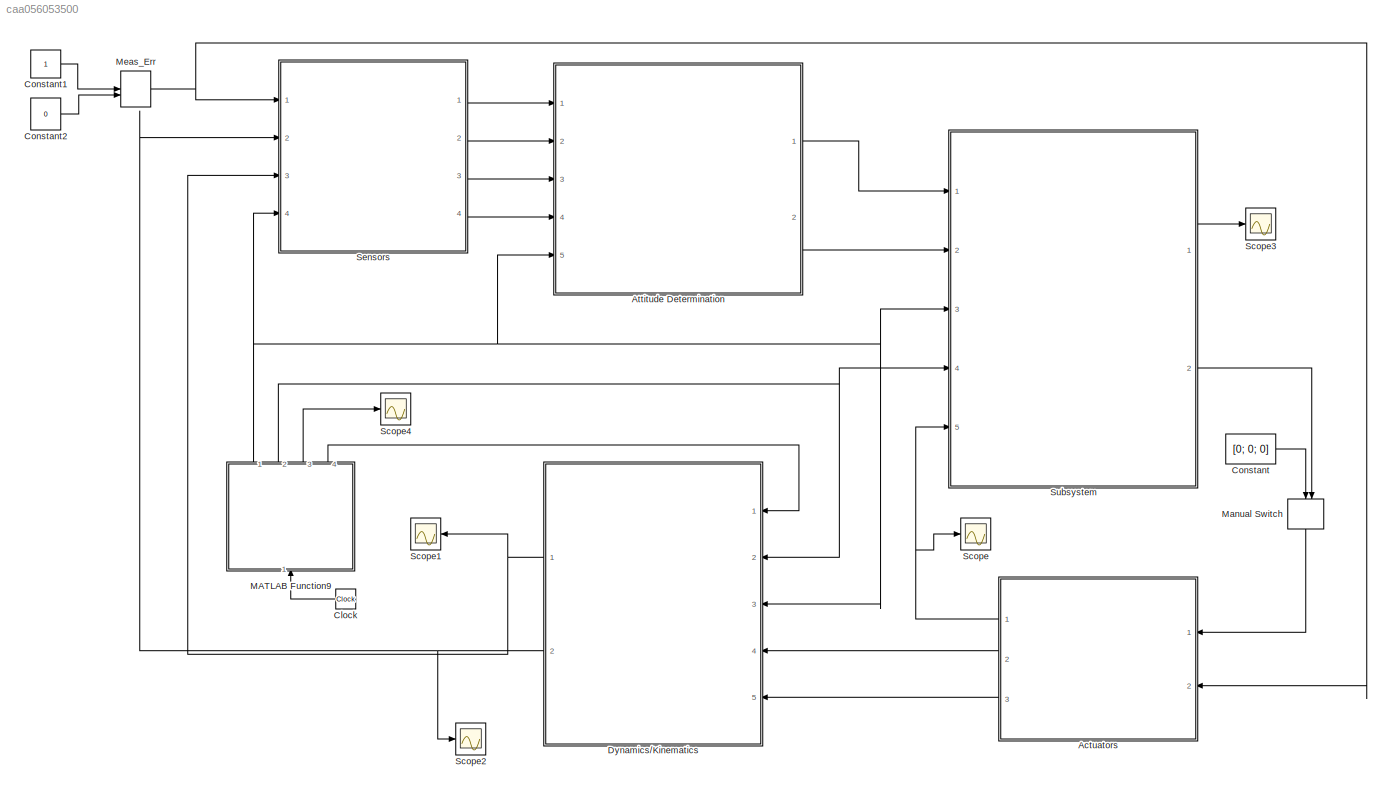
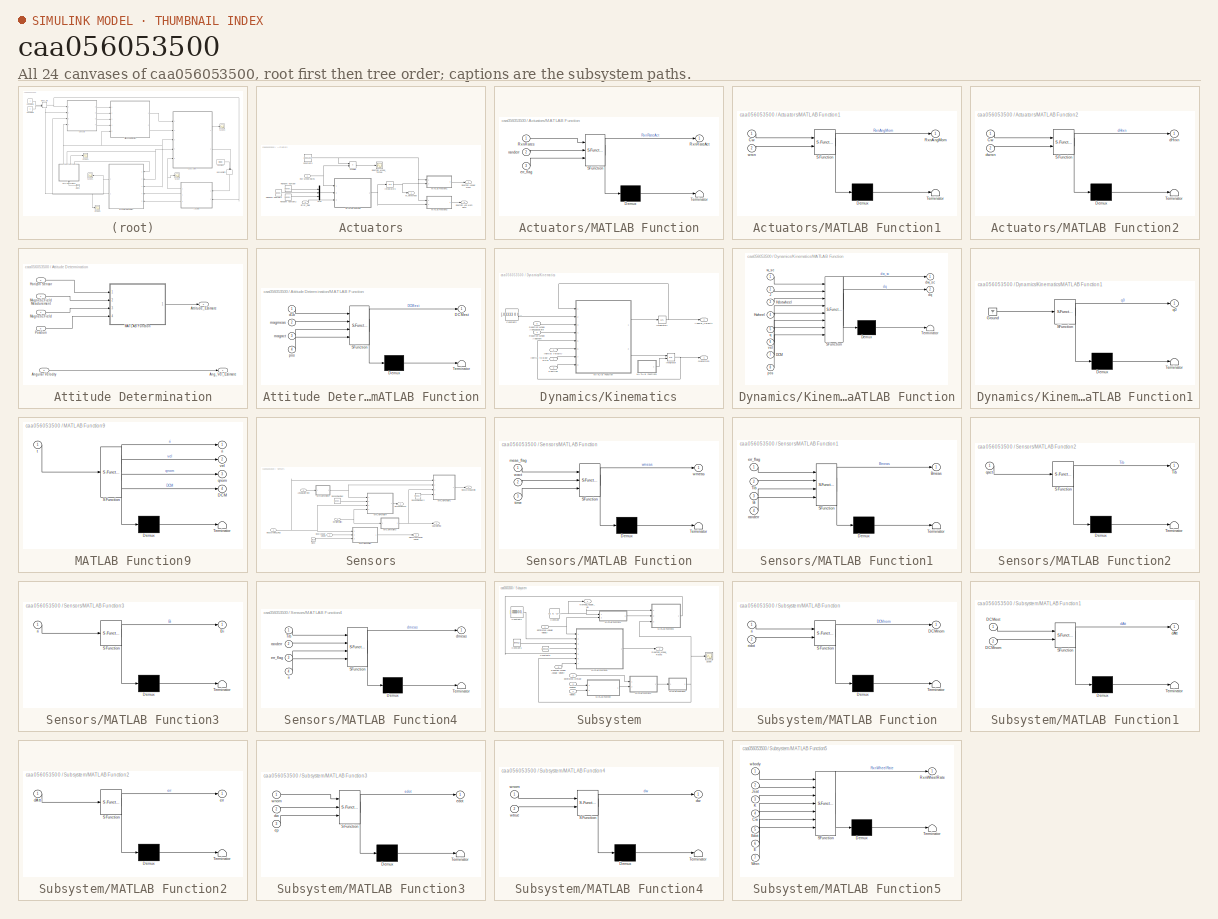
[diagram: thumbnail index - all 24 canvases of the model, root first then tree order]
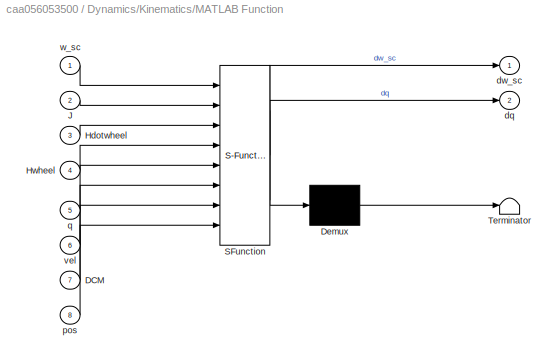
MODEL slx_caa056053500
KIND model
CONFIG AbsTol = auto
CONFIG EnableMultiTasking = off
CONFIG FixedStep = auto
CONFIG MaxStep = auto
CONFIG MinStep = auto
CONFIG RelTol = 1e-14
CONFIG SampleTimeConstraint = Unconstrained
CONFIG Solver = VariableStepAuto
CONFIG SolverName = VariableStepAuto
CONFIG StartTime = 0.0
CONFIG StopTime = 5000
BLOCK [SubSystem] Actuators
  Ports = [2, 3]
  RequestExecContextInheritance = off
BLOCK [Constant] Actuators/Constant3
  Value = .00001057
BLOCK [Inport] Actuators/Error_Flag 
  IconDisplay = Port number
  Port = 2
BLOCK [Integrator] Actuators/Integrator3
  InitialCondition = [0; 0; 0]
  Ports = [1, 1]
BLOCK [SubSystem] Actuators/MATLAB Function
  ErrorFcn = Stateflow.Translate.translate
  PermitHierarchicalResolution = ExplicitOnly
  Ports = [3, 1]
  RequestExecContextInheritance = off
  SFBlockType = MATLAB Function
  TreatAsAtomicUnit = on
BLOCK [Demux] Actuators/MATLAB Function/ Demux 
  Outputs = 1
  Ports = [1, 1]
BLOCK [S-Function] Actuators/MATLAB Function/ SFunction 
  EnableBusSupport = on
  FunctionName = sf_sfun
  PortCounts = [3 2]
  Ports = [3, 2]
  SFcnIsStateOwnerBlock = off
  SFunctionDeploymentMode = off
  Tag = Stateflow S-Function AttitudeFinalProject 24
BLOCK [Terminator] Actuators/MATLAB Function/ Terminator 
BLOCK [Outport] Actuators/MATLAB Function/RxnRateAct
  IconDisplay = Port number
BLOCK [Inport] Actuators/MATLAB Function/RxnRates
  IconDisplay = Port number
BLOCK [Inport] Actuators/MATLAB Function/err_flag
  IconDisplay = Port number
  Port = 3
BLOCK [Inport] Actuators/MATLAB Function/randerr
  IconDisplay = Port number
  Port = 2
BLOCK [SubSystem] Actuators/MATLAB Function1
  ErrorFcn = Stateflow.Translate.translate
  PermitHierarchicalResolution = ExplicitOnly
  Ports = [2, 1]
  RequestExecContextInheritance = off
  SFBlockType = MATLAB Function
  TreatAsAtomicUnit = on
BLOCK [Demux] Actuators/MATLAB Function1/ Demux 
  Outputs = 1
  Ports = [1, 1]
BLOCK [S-Function] Actuators/MATLAB Function1/ SFunction 
  EnableBusSupport = on
  FunctionName = sf_sfun
  PortCounts = [2 2]
  Ports = [2, 2]
  SFcnIsStateOwnerBlock = off
  SFunctionDeploymentMode = off
  Tag = Stateflow S-Function AttitudeFinalProject 25
BLOCK [Terminator] Actuators/MATLAB Function1/ Terminator 
BLOCK [Inport] Actuators/MATLAB Function1/Cw
  IconDisplay = Port number
BLOCK [Outport] Actuators/MATLAB Function1/RxnAngMom
  IconDisplay = Port number
BLOCK [Inport] Actuators/MATLAB Function1/wrxn
  IconDisplay = Port number
  Port = 2
BLOCK [SubSystem] Actuators/MATLAB Function2
  ErrorFcn = Stateflow.Translate.translate
  PermitHierarchicalResolution = ExplicitOnly
  Ports = [2, 1]
  RequestExecContextInheritance = off
  SFBlockType = MATLAB Function
  TreatAsAtomicUnit = on
BLOCK [Demux] Actuators/MATLAB Function2/ Demux 
  Outputs = 1
  Ports = [1, 1]
BLOCK [S-Function] Actuators/MATLAB Function2/ SFunction 
  EnableBusSupport = on
  FunctionName = sf_sfun
  PortCounts = [2 2]
  Ports = [2, 2]
  SFcnIsStateOwnerBlock = off
  SFunctionDeploymentMode = off
  Tag = Stateflow S-Function AttitudeFinalProject 26
BLOCK [Terminator] Actuators/MATLAB Function2/ Terminator 
BLOCK [Inport] Actuators/MATLAB Function2/Cw
  IconDisplay = Port number
BLOCK [Outport] Actuators/MATLAB Function2/dHrxn
  IconDisplay = Port number
BLOCK [Inport] Actuators/MATLAB Function2/dwrxn
  IconDisplay = Port number
  Port = 2
BLOCK [Product] Actuators/Multiply
  InputSameDT = off
  OutDataTypeStr = Inherit: Inherit via internal rule
  Ports = [2, 1]
  RndMeth = Floor
  SaturateOnIntegerOverflow = off
BLOCK [Mux] Actuators/Mux
  DisplayOption = bar
  Inputs = 3
  Ports = [3, 1]
BLOCK [RandomNumber] Actuators/Random Number
  SampleTime = 0.1
BLOCK [RandomNumber] Actuators/Random Number1
  SampleTime = 0.1
BLOCK [RandomNumber] Actuators/Random Number2
  SampleTime = 0.1
BLOCK [Outport] Actuators/Reaction Ang Mom Rate
  IconDisplay = Port number
  Port = 3
BLOCK [Outport] Actuators/Reaction Angular Mom
  IconDisplay = Port number
  Port = 2
BLOCK [Scope] Actuators/Reaction_Wheel_Torque 
  Floating = off
  NumInputPorts = 1
  Ports = [1]
  ScopeSpecificationString = Simulink.scopes.TimeScopeBlockCfg('CurrentConfiguration', extmgr.ConfigurationSet(extmgr.Configuration('Core','General UI',true),extmgr.Configuration('Core','Source UI',true),extmgr.Configuration('Sources','WiredSimulink',true,'DataLoggingVariableName','ScopeData1'),extmgr.Configuration('Visuals','Time Domain',true,'SerializedDisplays',{struct('MinYLimReal','-0.000006','MaxYLimReal','0.000024','YL...<+1403ch>
BLOCK [Inport] Actuators/Rxn Wheel Rates
  IconDisplay = Port number
BLOCK [Outport] Actuators/W_RxnWheel
  IconDisplay = Port number
BLOCK [SubSystem] Attitude Determination
  Ports = [5, 2]
  RequestExecContextInheritance = off
BLOCK [Outport] Attitude Determination/Ang_Vel_Estimate
  IconDisplay = Port number
BLOCK [Inport] Attitude Determination/Angular Velocity
  IconDisplay = Port number
  Port = 3
BLOCK [Outport] Attitude Determination/Attitude_Estimate
  IconDisplay = Port number
  Port = 2
BLOCK [Inport] Attitude Determination/Horizon Sensor
  IconDisplay = Port number
  Port = 2
BLOCK [SubSystem] Attitude Determination/MATLAB Function
  ErrorFcn = Stateflow.Translate.translate
  PermitHierarchicalResolution = ExplicitOnly
  Ports = [4, 1]
  RequestExecContextInheritance = off
  SFBlockType = MATLAB Function
  TreatAsAtomicUnit = on
BLOCK [Demux] Attitude Determination/MATLAB Function/ Demux 
  Outputs = 1
  Ports = [1, 1]
BLOCK [S-Function] Attitude Determination/MATLAB Function/ SFunction 
  EnableBusSupport = on
  FunctionName = sf_sfun
  PortCounts = [4 2]
  Ports = [4, 2]
  SFcnIsStateOwnerBlock = off
  SFunctionDeploymentMode = off
  Tag = Stateflow S-Function AttitudeFinalProject 11
BLOCK [Terminator] Attitude Determination/MATLAB Function/ Terminator 
BLOCK [Outport] Attitude Determination/MATLAB Function/DCMest
  IconDisplay = Port number
BLOCK [Inport] Attitude Determination/MATLAB Function/d1b
  IconDisplay = Port number
BLOCK [Inport] Attitude Determination/MATLAB Function/magact
  IconDisplay = Port number
  Port = 3
BLOCK [Inport] Attitude Determination/MATLAB Function/magmeas
  IconDisplay = Port number
  Port = 2
BLOCK [Inport] Attitude Determination/MATLAB Function/pos
  IconDisplay = Port number
  Port = 4
BLOCK [Inport] Attitude Determination/Magnetic Field
  IconDisplay = Port number
  Port = 4
BLOCK [Inport] Attitude Determination/Magnetic Field Meadurement
  IconDisplay = Port number
BLOCK [Inport] Attitude Determination/Position
  IconDisplay = Port number
  Port = 5
BLOCK [Clock] Clock
BLOCK [Constant] Constant
  Value = [0; 0; 0]
BLOCK [Constant] Constant1
BLOCK [Constant] Constant2
  Value = 0
BLOCK [SubSystem] Dynamics//Kinematics
  Ports = [5, 2]
  RequestExecContextInheritance = off
BLOCK [Outport] Dynamics//Kinematics/Angular_Velocity
  IconDisplay = Port number
  Port = 2
BLOCK [Constant] Dynamics//Kinematics/Constant2
  Value = [.03333 0 0; 0 .0067 0; 0 0 .03333]
BLOCK [Inport] Dynamics//Kinematics/Inertial Velocity
  IconDisplay = Port number
  Port = 2
BLOCK [Inport] Dynamics//Kinematics/Inertial to Body DCM 
  IconDisplay = Port number
BLOCK [Integrator] Dynamics//Kinematics/Integrator
  InitialConditionSource = external
  Ports = [2, 1]
BLOCK [Integrator] Dynamics//Kinematics/Integrator1
  InitialCondition = [.005; 0; - sqrt(3.986e14/6600000^3)]
  Ports = [1, 1]
BLOCK [SubSystem] Dynamics//Kinematics/MATLAB Function
  ErrorFcn = Stateflow.Translate.translate
  PermitHierarchicalResolution = ExplicitOnly
  Ports = [8, 2]
  RequestExecContextInheritance = off
  SFBlockType = MATLAB Function
  TreatAsAtomicUnit = on
BLOCK [Demux] Dynamics//Kinematics/MATLAB Function/ Demux 
  Outputs = 1
  Ports = [1, 1]
BLOCK [S-Function] Dynamics//Kinematics/MATLAB Function/ SFunction 
  EnableBusSupport = on
  FunctionName = sf_sfun
  PortCounts = [8 3]
  Ports = [8, 3]
  SFcnIsStateOwnerBlock = off
  SFunctionDeploymentMode = off
  Tag = Stateflow S-Function AttitudeFinalProject 27
BLOCK [Terminator] Dynamics//Kinematics/MATLAB Function/ Terminator 
BLOCK [Inport] Dynamics//Kinematics/MATLAB Function/DCM
  IconDisplay = Port number
  Port = 7
BLOCK [Inport] Dynamics//Kinematics/MATLAB Function/Hdotwheel
  IconDisplay = Port number
  Port = 3
BLOCK [Inport] Dynamics//Kinematics/MATLAB Function/Hwheel
  IconDisplay = Port number
  Port = 4
BLOCK [Inport] Dynamics//Kinematics/MATLAB Function/J
  IconDisplay = Port number
  Port = 2
BLOCK [Outport] Dynamics//Kinematics/MATLAB Function/dq
  IconDisplay = Port number
  Port = 2
BLOCK [Outport] Dynamics//Kinematics/MATLAB Function/dw_sc
  IconDisplay = Port number
BLOCK [Inport] Dynamics//Kinematics/MATLAB Function/pos
  IconDisplay = Port number
  Port = 8
BLOCK [Inport] Dynamics//Kinematics/MATLAB Function/q
  IconDisplay = Port number
  Port = 5
BLOCK [Inport] Dynamics//Kinematics/MATLAB Function/vel
  IconDisplay = Port number
  Port = 6
BLOCK [Inport] Dynamics//Kinematics/MATLAB Function/w_sc
  IconDisplay = Port number
BLOCK [SubSystem] Dynamics//Kinematics/MATLAB Function1
  ErrorFcn = Stateflow.Translate.translate
  PermitHierarchicalResolution = ExplicitOnly
  Ports = [0, 1]
  RequestExecContextInheritance = off
  SFBlockType = MATLAB Function
  TreatAsAtomicUnit = on
BLOCK [Demux] Dynamics//Kinematics/MATLAB Function1/ Demux 
  Outputs = 1
  Ports = [1, 1]
BLOCK [Ground] Dynamics//Kinematics/MATLAB Function1/ Ground 
BLOCK [S-Function] Dynamics//Kinematics/MATLAB Function1/ SFunction 
  EnableBusSupport = on
  FunctionName = sf_sfun
  PortCounts = [1 2]
  Ports = [1, 2]
  SFcnIsStateOwnerBlock = off
  SFunctionDeploymentMode = off
  Tag = Stateflow S-Function AttitudeFinalProject 2
BLOCK [Terminator] Dynamics//Kinematics/MATLAB Function1/ Terminator 
BLOCK [Outport] Dynamics//Kinematics/MATLAB Function1/q0
  IconDisplay = Port number
BLOCK [Inport] Dynamics//Kinematics/Position 
  IconDisplay = Port number
  Port = 3
BLOCK [Outport] Dynamics//Kinematics/Quaternion
  IconDisplay = Port number
BLOCK [Inport] Dynamics//Kinematics/Reaction Wheel AngMom
  IconDisplay = Port number
  Port = 4
BLOCK [Inport] Dynamics//Kinematics/Reaction Wheel AngMomRate 
  IconDisplay = Port number
  Port = 5
BLOCK [SubSystem] MATLAB Function9
  ErrorFcn = Stateflow.Translate.translate
  PermitHierarchicalResolution = ExplicitOnly
  Ports = [1, 4]
  RequestExecContextInheritance = off
  SFBlockType = MATLAB Function
  TreatAsAtomicUnit = on
BLOCK [Demux] MATLAB Function9/ Demux 
  Outputs = 1
  Ports = [1, 1]
BLOCK [S-Function] MATLAB Function9/ SFunction 
  EnableBusSupport = on
  FunctionName = sf_sfun
  PortCounts = [1 5]
  Ports = [1, 5]
  SFcnIsStateOwnerBlock = off
  SFunctionDeploymentMode = off
  Tag = Stateflow S-Function AttitudeFinalProject 10
BLOCK [Terminator] MATLAB Function9/ Terminator 
BLOCK [Outport] MATLAB Function9/DCM
  IconDisplay = Port number
  Port = 4
BLOCK [Outport] MATLAB Function9/qnom
  IconDisplay = Port number
  Port = 3
BLOCK [Outport] MATLAB Function9/ri
  IconDisplay = Port number
BLOCK [Inport] MATLAB Function9/t
  IconDisplay = Port number
BLOCK [Outport] MATLAB Function9/vel
  IconDisplay = Port number
  Port = 2
BLOCK [ManualSwitch] Manual Switch
  CurrentSetting = 0
BLOCK [ManualSwitch] Meas_Err
BLOCK [Scope] Scope
  Floating = off
  NumInputPorts = 1
  Ports = [1]
  ScopeSpecificationString = Simulink.scopes.TimeScopeBlockCfg('CurrentConfiguration', extmgr.ConfigurationSet(extmgr.Configuration('Core','General UI',true),extmgr.Configuration('Core','Source UI',true),extmgr.Configuration('Sources','WiredSimulink',true),extmgr.Configuration('Visuals','Time Domain',true,'SerializedDisplays',{struct('MinYLimReal','-100.46823','MaxYLimReal','53.04843','YLabelReal','','MinYLimMag',' 0.00000','...<+1377ch>
BLOCK [Scope] Scope1
  Floating = off
  NumInputPorts = 1
  Ports = [1]
  ScopeSpecificationString = Simulink.scopes.TimeScopeBlockCfg('CurrentConfiguration', extmgr.ConfigurationSet(extmgr.Configuration('Core','General UI',true),extmgr.Configuration('Core','Source UI',true),extmgr.Configuration('Sources','WiredSimulink',true,'DataLoggingVariableName','ScopeData2'),extmgr.Configuration('Visuals','Time Domain',true,'SerializedDisplays',{struct('MinYLimReal','-1.16283','MaxYLimReal','1.2331','YLabe...<+1485ch>
BLOCK [Scope] Scope2
  Floating = off
  NumInputPorts = 1
  Ports = [1]
  ScopeSpecificationString = Simulink.scopes.TimeScopeBlockCfg('CurrentConfiguration', extmgr.ConfigurationSet(extmgr.Configuration('Core','General UI',true),extmgr.Configuration('Core','Source UI',true),extmgr.Configuration('Sources','WiredSimulink',true,'DataLoggingVariableName','ScopeData3'),extmgr.Configuration('Visuals','Time Domain',true,'SerializedDisplays',{struct('MinYLimReal','-0.00222','MaxYLimReal','0.0058','YLabe...<+1430ch>
BLOCK [Scope] Scope3
  Floating = off
  NumInputPorts = 1
  Ports = [1]
  ScopeSpecificationString = Simulink.scopes.TimeScopeBlockCfg('CurrentConfiguration', extmgr.ConfigurationSet(extmgr.Configuration('Core','General UI',true),extmgr.Configuration('Core','Source UI',true),extmgr.Configuration('Sources','WiredSimulink',true,'DataLoggingVariableName','ScopeData1'),extmgr.Configuration('Visuals','Time Domain',true,'SerializedDisplays',{struct('MinYLimReal','-0.00132','MaxYLimReal','0.00015','YLab...<+1404ch>
BLOCK [Scope] Scope4
  Floating = off
  NumInputPorts = 1
  Ports = [1]
  ScopeSpecificationString = Simulink.scopes.TimeScopeBlockCfg('CurrentConfiguration', extmgr.ConfigurationSet(extmgr.Configuration('Core','General UI',true),extmgr.Configuration('Core','Source UI',true),extmgr.Configuration('Sources','WiredSimulink',true,'DataLoggingVariableName','ScopeData7'),extmgr.Configuration('Visuals','Time Domain',true,'SerializedDisplays',{struct('MinYLimReal','-1.15485','MaxYLimReal','1.15485','YLab...<+1488ch>
BLOCK [SubSystem] Sensors
  Ports = [4, 4]
  RequestExecContextInheritance = off
BLOCK [Inport] Sensors/Actual Quaternion
  IconDisplay = Port number
  Port = 3
BLOCK [Inport] Sensors/Body Angular Velocity
  IconDisplay = Port number
  Port = 2
BLOCK [Clock] Sensors/Clock
BLOCK [Outport] Sensors/Horizon Sensor
  IconDisplay = Port number
  Port = 2
BLOCK [Inport] Sensors/Inertial Position
  IconDisplay = Port number
  Port = 4
BLOCK [SubSystem] Sensors/MATLAB Function
  ErrorFcn = Stateflow.Translate.translate
  PermitHierarchicalResolution = ExplicitOnly
  Ports = [3, 1]
  RequestExecContextInheritance = off
  SFBlockType = MATLAB Function
  TreatAsAtomicUnit = on
BLOCK [Demux] Sensors/MATLAB Function/ Demux 
  Outputs = 1
  Ports = [1, 1]
BLOCK [S-Function] Sensors/MATLAB Function/ SFunction 
  EnableBusSupport = on
  FunctionName = sf_sfun
  PortCounts = [3 2]
  Ports = [3, 2]
  SFcnIsStateOwnerBlock = off
  SFunctionDeploymentMode = off
  Tag = Stateflow S-Function AttitudeFinalProject 12
BLOCK [Terminator] Sensors/MATLAB Function/ Terminator 
BLOCK [Inport] Sensors/MATLAB Function/meas_flag
  IconDisplay = Port number
BLOCK [Inport] Sensors/MATLAB Function/time
  IconDisplay = Port number
  Port = 3
BLOCK [Inport] Sensors/MATLAB Function/wact
  IconDisplay = Port number
  Port = 2
BLOCK [Outport] Sensors/MATLAB Function/wmeas
  IconDisplay = Port number
BLOCK [SubSystem] Sensors/MATLAB Function1
  ErrorFcn = Stateflow.Translate.translate
  PermitHierarchicalResolution = ExplicitOnly
  Ports = [4, 1]
  RequestExecContextInheritance = off
  SFBlockType = MATLAB Function
  TreatAsAtomicUnit = on
BLOCK [Demux] Sensors/MATLAB Function1/ Demux 
  Outputs = 1
  Ports = [1, 1]
BLOCK [S-Function] Sensors/MATLAB Function1/ SFunction 
  EnableBusSupport = on
  FunctionName = sf_sfun
  PortCounts = [4 2]
  Ports = [4, 2]
  SFcnIsStateOwnerBlock = off
  SFunctionDeploymentMode = off
  Tag = Stateflow S-Function AttitudeFinalProject 13
BLOCK [Terminator] Sensors/MATLAB Function1/ Terminator 
BLOCK [Inport] Sensors/MATLAB Function1/Bi
  IconDisplay = Port number
  Port = 3
BLOCK [Outport] Sensors/MATLAB Function1/Bmeas
  IconDisplay = Port number
BLOCK [Inport] Sensors/MATLAB Function1/Tib
  IconDisplay = Port number
  Port = 2
BLOCK [Inport] Sensors/MATLAB Function1/err_flag
  IconDisplay = Port number
BLOCK [Inport] Sensors/MATLAB Function1/randerr
  IconDisplay = Port number
  Port = 4
BLOCK [SubSystem] Sensors/MATLAB Function2
  ErrorFcn = Stateflow.Translate.translate
  PermitHierarchicalResolution = ExplicitOnly
  Ports = [1, 1]
  RequestExecContextInheritance = off
  SFBlockType = MATLAB Function
  TreatAsAtomicUnit = on
BLOCK [Demux] Sensors/MATLAB Function2/ Demux 
  Outputs = 1
  Ports = [1, 1]
BLOCK [S-Function] Sensors/MATLAB Function2/ SFunction 
  EnableBusSupport = on
  FunctionName = sf_sfun
  PortCounts = [1 2]
  Ports = [1, 2]
  SFcnIsStateOwnerBlock = off
  SFunctionDeploymentMode = off
  Tag = Stateflow S-Function AttitudeFinalProject 14
BLOCK [Terminator] Sensors/MATLAB Function2/ Terminator 
BLOCK [Outport] Sensors/MATLAB Function2/Tib
  IconDisplay = Port number
BLOCK [Inport] Sensors/MATLAB Function2/qact
  IconDisplay = Port number
BLOCK [SubSystem] Sensors/MATLAB Function3
  ErrorFcn = Stateflow.Translate.translate
  PermitHierarchicalResolution = ExplicitOnly
  Ports = [1, 1]
  RequestExecContextInheritance = off
  SFBlockType = MATLAB Function
  TreatAsAtomicUnit = on
BLOCK [Demux] Sensors/MATLAB Function3/ Demux 
  Outputs = 1
  Ports = [1, 1]
BLOCK [S-Function] Sensors/MATLAB Function3/ SFunction 
  EnableBusSupport = on
  FunctionName = sf_sfun
  PortCounts = [1 2]
  Ports = [1, 2]
  SFcnIsStateOwnerBlock = off
  SFunctionDeploymentMode = off
  Tag = Stateflow S-Function AttitudeFinalProject 15
BLOCK [Terminator] Sensors/MATLAB Function3/ Terminator 
BLOCK [Outport] Sensors/MATLAB Function3/Bi
  IconDisplay = Port number
BLOCK [Inport] Sensors/MATLAB Function3/ri
  IconDisplay = Port number
BLOCK [SubSystem] Sensors/MATLAB Function4
  ErrorFcn = Stateflow.Translate.translate
  PermitHierarchicalResolution = ExplicitOnly
  Ports = [4, 1]
  RequestExecContextInheritance = off
  SFBlockType = MATLAB Function
  TreatAsAtomicUnit = on
BLOCK [Demux] Sensors/MATLAB Function4/ Demux 
  Outputs = 1
  Ports = [1, 1]
BLOCK [S-Function] Sensors/MATLAB Function4/ SFunction 
  EnableBusSupport = on
  FunctionName = sf_sfun
  PortCounts = [4 2]
  Ports = [4, 2]
  SFcnIsStateOwnerBlock = off
  SFunctionDeploymentMode = off
  Tag = Stateflow S-Function AttitudeFinalProject 16
BLOCK [Terminator] Sensors/MATLAB Function4/ Terminator 
BLOCK [Inport] Sensors/MATLAB Function4/Tib
  IconDisplay = Port number
BLOCK [Outport] Sensors/MATLAB Function4/dmeas
  IconDisplay = Port number
BLOCK [Inport] Sensors/MATLAB Function4/err_flag
  IconDisplay = Port number
  Port = 3
BLOCK [Inport] Sensors/MATLAB Function4/randerr
  IconDisplay = Port number
  Port = 2
BLOCK [Inport] Sensors/MATLAB Function4/ri
  IconDisplay = Port number
  Port = 4
BLOCK [Outport] Sensors/Magnetic Field
  IconDisplay = Port number
  Port = 4
BLOCK [Outport] Sensors/Measured Angular Velocity
  IconDisplay = Port number
  Port = 3
BLOCK [Outport] Sensors/Measured Magnetic
  IconDisplay = Port number
BLOCK [Inport] Sensors/Measurement_Flag 
  IconDisplay = Port number
BLOCK [RandomNumber] Sensors/Random Number
  Mean = zeros(3)
  SampleTime = 0.1
  Seed = [0 1 2; 3 4 5; 6 7 8]
  Variance = ones(3)
BLOCK [RandomNumber] Sensors/Random Number2
  Mean = [0; 0; 0]
  SampleTime = 0.1
  Seed = [1; 3; 5]
  Variance = [1; 1; 1]
BLOCK [SubSystem] Subsystem
  Ports = [5, 2]
  RequestExecContextInheritance = off
BLOCK [Constant] Subsystem/Constant
  Value = [0; 0; -1]*sqrt(3.986e14/6600000^3)
BLOCK [Constant] Subsystem/Constant1
  Value = [.0005, .1]
BLOCK [Constant] Subsystem/Constant2
  Value = [.03333 0 0; 0 .0067 0; 0 0 .03333]
BLOCK [Constant] Subsystem/Constant3
  Value = .00001057
BLOCK [Inport] Subsystem/Estimated Angular Velocity
  IconDisplay = Port number
BLOCK [Inport] Subsystem/Estimated Attitude
  IconDisplay = Port number
  Port = 2
BLOCK [SubSystem] Subsystem/MATLAB Function
  ErrorFcn = Stateflow.Translate.translate
  PermitHierarchicalResolution = ExplicitOnly
  Ports = [2, 1]
  RequestExecContextInheritance = off
  SFBlockType = MATLAB Function
  TreatAsAtomicUnit = on
BLOCK [Demux] Subsystem/MATLAB Function/ Demux 
  Outputs = 1
  Ports = [1, 1]
BLOCK [S-Function] Subsystem/MATLAB Function/ SFunction 
  EnableBusSupport = on
  FunctionName = sf_sfun
  PortCounts = [2 2]
  Ports = [2, 2]
  SFcnIsStateOwnerBlock = off
  SFunctionDeploymentMode = off
  Tag = Stateflow S-Function AttitudeFinalProject 18
BLOCK [Terminator] Subsystem/MATLAB Function/ Terminator 
BLOCK [Outport] Subsystem/MATLAB Function/DCMnom
  IconDisplay = Port number
BLOCK [Inport] Subsystem/MATLAB Function/ri
  IconDisplay = Port number
BLOCK [Inport] Subsystem/MATLAB Function/ridot
  IconDisplay = Port number
  Port = 2
BLOCK [SubSystem] Subsystem/MATLAB Function1
  ErrorFcn = Stateflow.Translate.translate
  PermitHierarchicalResolution = ExplicitOnly
  Ports = [2, 1]
  RequestExecContextInheritance = off
  SFBlockType = MATLAB Function
  TreatAsAtomicUnit = on
BLOCK [Demux] Subsystem/MATLAB Function1/ Demux 
  Outputs = 1
  Ports = [1, 1]
BLOCK [S-Function] Subsystem/MATLAB Function1/ SFunction 
  EnableBusSupport = on
  FunctionName = sf_sfun
  PortCounts = [2 2]
  Ports = [2, 2]
  SFcnIsStateOwnerBlock = off
  SFunctionDeploymentMode = off
  Tag = Stateflow S-Function AttitudeFinalProject 19
BLOCK [Terminator] Subsystem/MATLAB Function1/ Terminator 
BLOCK [Inport] Subsystem/MATLAB Function1/DCMest
  IconDisplay = Port number
BLOCK [Inport] Subsystem/MATLAB Function1/DCMnom
  IconDisplay = Port number
  Port = 2
BLOCK [Outport] Subsystem/MATLAB Function1/dAtt
  IconDisplay = Port number
BLOCK [SubSystem] Subsystem/MATLAB Function2
  ErrorFcn = Stateflow.Translate.translate
  PermitHierarchicalResolution = ExplicitOnly
  Ports = [1, 1]
  RequestExecContextInheritance = off
  SFBlockType = MATLAB Function
  TreatAsAtomicUnit = on
BLOCK [Demux] Subsystem/MATLAB Function2/ Demux 
  Outputs = 1
  Ports = [1, 1]
BLOCK [S-Function] Subsystem/MATLAB Function2/ SFunction 
  EnableBusSupport = on
  FunctionName = sf_sfun
  PortCounts = [1 2]
  Ports = [1, 2]
  SFcnIsStateOwnerBlock = off
  SFunctionDeploymentMode = off
  Tag = Stateflow S-Function AttitudeFinalProject 20
BLOCK [Terminator] Subsystem/MATLAB Function2/ Terminator 
BLOCK [Inport] Subsystem/MATLAB Function2/dAtt
  IconDisplay = Port number
BLOCK [Outport] Subsystem/MATLAB Function2/err
  IconDisplay = Port number
BLOCK [SubSystem] Subsystem/MATLAB Function3
  ErrorFcn = Stateflow.Translate.translate
  PermitHierarchicalResolution = ExplicitOnly
  Ports = [3, 1]
  RequestExecContextInheritance = off
  SFBlockType = MATLAB Function
  TreatAsAtomicUnit = on
BLOCK [Demux] Subsystem/MATLAB Function3/ Demux 
  Outputs = 1
  Ports = [1, 1]
BLOCK [S-Function] Subsystem/MATLAB Function3/ SFunction 
  EnableBusSupport = on
  FunctionName = sf_sfun
  PortCounts = [3 2]
  Ports = [3, 2]
  SFcnIsStateOwnerBlock = off
  SFunctionDeploymentMode = off
  Tag = Stateflow S-Function AttitudeFinalProject 21
BLOCK [Terminator] Subsystem/MATLAB Function3/ Terminator 
BLOCK [Inport] Subsystem/MATLAB Function3/dw
  IconDisplay = Port number
  Port = 2
BLOCK [Outport] Subsystem/MATLAB Function3/edot
  IconDisplay = Port number
BLOCK [Inport] Subsystem/MATLAB Function3/ep
  IconDisplay = Port number
  Port = 3
BLOCK [Inport] Subsystem/MATLAB Function3/wnom
  IconDisplay = Port number
BLOCK [SubSystem] Subsystem/MATLAB Function4
  ErrorFcn = Stateflow.Translate.translate
  PermitHierarchicalResolution = ExplicitOnly
  Ports = [2, 1]
  RequestExecContextInheritance = off
  SFBlockType = MATLAB Function
  TreatAsAtomicUnit = on
BLOCK [Demux] Subsystem/MATLAB Function4/ Demux 
  Outputs = 1
  Ports = [1, 1]
BLOCK [S-Function] Subsystem/MATLAB Function4/ SFunction 
  EnableBusSupport = on
  FunctionName = sf_sfun
  PortCounts = [2 2]
  Ports = [2, 2]
  SFcnIsStateOwnerBlock = off
  SFunctionDeploymentMode = off
  Tag = Stateflow S-Function AttitudeFinalProject 22
BLOCK [Terminator] Subsystem/MATLAB Function4/ Terminator 
BLOCK [Outport] Subsystem/MATLAB Function4/dw
  IconDisplay = Port number
BLOCK [Inport] Subsystem/MATLAB Function4/wnom
  IconDisplay = Port number
BLOCK [Inport] Subsystem/MATLAB Function4/wtrue
  IconDisplay = Port number
  Port = 2
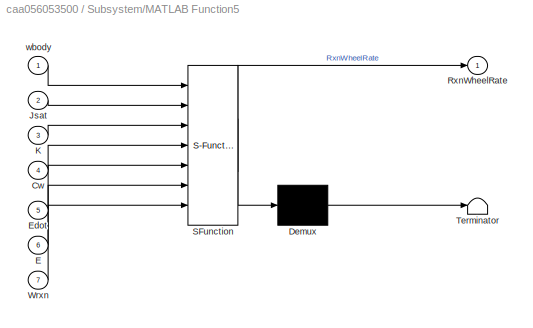
BLOCK [SubSystem] Subsystem/MATLAB Function5
  ErrorFcn = Stateflow.Translate.translate
  PermitHierarchicalResolution = ExplicitOnly
  Ports = [7, 1]
  RequestExecContextInheritance = off
  SFBlockType = MATLAB Function
  TreatAsAtomicUnit = on
BLOCK [Demux] Subsystem/MATLAB Function5/ Demux 
  Outputs = 1
  Ports = [1, 1]
BLOCK [S-Function] Subsystem/MATLAB Function5/ SFunction 
  EnableBusSupport = on
  FunctionName = sf_sfun
  PortCounts = [7 2]
  Ports = [7, 2]
  SFcnIsStateOwnerBlock = off
  SFunctionDeploymentMode = off
  Tag = Stateflow S-Function AttitudeFinalProject 23
BLOCK [Terminator] Subsystem/MATLAB Function5/ Terminator 
BLOCK [Inport] Subsystem/MATLAB Function5/Cw
  IconDisplay = Port number
  Port = 4
BLOCK [Inport] Subsystem/MATLAB Function5/E
  IconDisplay = Port number
  Port = 6
BLOCK [Inport] Subsystem/MATLAB Function5/Edot
  IconDisplay = Port number
  Port = 5
BLOCK [Inport] Subsystem/MATLAB Function5/Jsat
  IconDisplay = Port number
  Port = 2
BLOCK [Inport] Subsystem/MATLAB Function5/K
  IconDisplay = Port number
  Port = 3
BLOCK [Outport] Subsystem/MATLAB Function5/RxnWheelRate
  IconDisplay = Port number
BLOCK [Inport] Subsystem/MATLAB Function5/Wrxn
  IconDisplay = Port number
  Port = 7
BLOCK [Inport] Subsystem/MATLAB Function5/wbody
  IconDisplay = Port number
BLOCK [Outport] Subsystem/Nominal_Angular_Vel
  IconDisplay = Port number
BLOCK [Inport] Subsystem/Position
  IconDisplay = Port number
  Port = 3
BLOCK [Inport] Subsystem/Reaction Wheel Angular Velocity
  IconDisplay = Port number
  Port = 5
BLOCK [Outport] Subsystem/Reaction_Wheel_Rates
  IconDisplay = Port number
  Port = 2
BLOCK [Scope] Subsystem/Scope
  Floating = off
  NumInputPorts = 1
  Ports = [1]
  ScopeSpecificationString = Simulink.scopes.TimeScopeBlockCfg('CurrentConfiguration', extmgr.ConfigurationSet(extmgr.Configuration('Core','General UI',true),extmgr.Configuration('Core','Source UI',true),extmgr.Configuration('Sources','WiredSimulink',true,'DataLoggingVariableName','ScopeData3'),extmgr.Configuration('Visuals','Time Domain',true,'SerializedDisplays',{struct('MinYLimReal','-1.19525','MaxYLimReal','0.29526','YLab...<+1419ch>
BLOCK [Inport] Subsystem/Velocity 
  IconDisplay = Port number
  Port = 4
NET Actuators/Constant3:1 -> Actuators/MATLAB Function1:1, Actuators/MATLAB Function2:1, Actuators/Multiply:1
LINE Actuators/Error_Flag :1 -> Actuators/MATLAB Function:3
NET Actuators/Integrator3:1 -> Actuators/MATLAB Function1:2, Actuators/W_RxnWheel:1
LINE Actuators/MATLAB Function1:1 -> Actuators/Reaction Angular Mom:1
LINE Actuators/MATLAB Function2:1 -> Actuators/Reaction Ang Mom Rate:1
NET Actuators/MATLAB Function:1 -> Actuators/Integrator3:1, Actuators/MATLAB Function2:2
LINE Actuators/Multiply:1 -> Actuators/Reaction_Wheel_Torque :1
LINE Actuators/Mux:1 -> Actuators/MATLAB Function:2
LINE Actuators/Random Number1:1 -> Actuators/Mux:2
LINE Actuators/Random Number2:1 -> Actuators/Mux:3
LINE Actuators/Random Number:1 -> Actuators/Mux:1
NET Actuators/Rxn Wheel Rates:1 -> Actuators/MATLAB Function:1, Actuators/Multiply:2
NET Actuators:1 -> Scope:1, Subsystem:5
LINE Actuators:2 -> Dynamics//Kinematics:4
LINE Actuators:3 -> Dynamics//Kinematics:5
LINE Attitude Determination/Angular Velocity:1 -> Attitude Determination/Ang_Vel_Estimate:1
LINE Attitude Determination/Horizon Sensor:1 -> Attitude Determination/MATLAB Function:1
LINE Attitude Determination/MATLAB Function:1 -> Attitude Determination/Attitude_Estimate:1
LINE Attitude Determination/Magnetic Field Meadurement:1 -> Attitude Determination/MATLAB Function:2
LINE Attitude Determination/Magnetic Field:1 -> Attitude Determination/MATLAB Function:3
LINE Attitude Determination/Position:1 -> Attitude Determination/MATLAB Function:4
LINE Attitude Determination:1 -> Subsystem:1
LINE Attitude Determination:2 -> Subsystem:2
LINE Clock:1 -> MATLAB Function9:1
LINE Constant1:1 -> Meas_Err:1
LINE Constant2:1 -> Meas_Err:2
LINE Constant:1 -> Manual Switch:1
LINE Dynamics//Kinematics/Constant2:1 -> Dynamics//Kinematics/MATLAB Function:2
LINE Dynamics//Kinematics/Inertial Velocity:1 -> Dynamics//Kinematics/MATLAB Function:6
LINE Dynamics//Kinematics/Inertial to Body DCM :1 -> Dynamics//Kinematics/MATLAB Function:7
NET Dynamics//Kinematics/Integrator1:1 -> Dynamics//Kinematics/Angular_Velocity:1, Dynamics//Kinematics/MATLAB Function:1
NET Dynamics//Kinematics/Integrator:1 -> Dynamics//Kinematics/MATLAB Function:5, Dynamics//Kinematics/Quaternion:1
LINE Dynamics//Kinematics/MATLAB Function1:1 -> Dynamics//Kinematics/Integrator:2
LINE Dynamics//Kinematics/MATLAB Function:1 -> Dynamics//Kinematics/Integrator1:1
LINE Dynamics//Kinematics/MATLAB Function:2 -> Dynamics//Kinematics/Integrator:1
LINE Dynamics//Kinematics/Position :1 -> Dynamics//Kinematics/MATLAB Function:8
LINE Dynamics//Kinematics/Reaction Wheel AngMom:1 -> Dynamics//Kinematics/MATLAB Function:4
LINE Dynamics//Kinematics/Reaction Wheel AngMomRate :1 -> Dynamics//Kinematics/MATLAB Function:3
NET Dynamics//Kinematics:1 -> Scope1:1, Sensors:3
NET Dynamics//Kinematics:2 -> Scope2:1, Sensors:2
NET MATLAB Function9:1 -> Attitude Determination:5, Dynamics//Kinematics:3, Sensors:4, Subsystem:3
NET MATLAB Function9:2 -> Dynamics//Kinematics:2, Subsystem:4
LINE MATLAB Function9:3 -> Scope4:1
LINE MATLAB Function9:4 -> Dynamics//Kinematics:1
LINE Manual Switch:1 -> Actuators:1
NET Meas_Err:1 -> Actuators:2, Sensors:1
LINE Sensors/Actual Quaternion:1 -> Sensors/MATLAB Function2:1
LINE Sensors/Body Angular Velocity:1 -> Sensors/MATLAB Function:2
LINE Sensors/Clock:1 -> Sensors/MATLAB Function:3
NET Sensors/Inertial Position:1 -> Sensors/MATLAB Function3:1, Sensors/MATLAB Function4:4
LINE Sensors/MATLAB Function1:1 -> Sensors/Measured Magnetic:1
NET Sensors/MATLAB Function2:1 -> Sensors/MATLAB Function1:2, Sensors/MATLAB Function4:1
NET Sensors/MATLAB Function3:1 -> Sensors/MATLAB Function1:3, Sensors/Magnetic Field:1
LINE Sensors/MATLAB Function4:1 -> Sensors/Horizon Sensor:1
LINE Sensors/MATLAB Function:1 -> Sensors/Measured Angular Velocity:1
NET Sensors/Measurement_Flag :1 -> Sensors/MATLAB Function1:1, Sensors/MATLAB Function4:3, Sensors/MATLAB Function:1
LINE Sensors/Random Number2:1 -> Sensors/MATLAB Function1:4
LINE Sensors/Random Number:1 -> Sensors/MATLAB Function4:2
LINE Sensors:1 -> Attitude Determination:1
LINE Sensors:2 -> Attitude Determination:2
LINE Sensors:3 -> Attitude Determination:3
LINE Sensors:4 -> Attitude Determination:4
LINE Subsystem/Constant1:1 -> Subsystem/MATLAB Function5:3
LINE Subsystem/Constant2:1 -> Subsystem/MATLAB Function5:2
LINE Subsystem/Constant3:1 -> Subsystem/MATLAB Function5:4
NET Subsystem/Constant:1 -> Subsystem/MATLAB Function3:1, Subsystem/MATLAB Function4:1, Subsystem/Nominal_Angular_Vel:1
NET Subsystem/Estimated Angular Velocity:1 -> Subsystem/MATLAB Function4:2, Subsystem/MATLAB Function5:1
LINE Subsystem/Estimated Attitude:1 -> Subsystem/MATLAB Function1:1
LINE Subsystem/MATLAB Function1:1 -> Subsystem/MATLAB Function2:1
NET Subsystem/MATLAB Function2:1 -> Subsystem/MATLAB Function3:3, Subsystem/MATLAB Function5:6, Subsystem/Scope:1
LINE Subsystem/MATLAB Function3:1 -> Subsystem/MATLAB Function5:5
LINE Subsystem/MATLAB Function4:1 -> Subsystem/MATLAB Function3:2
LINE Subsystem/MATLAB Function5:1 -> Subsystem/Reaction_Wheel_Rates:1
LINE Subsystem/MATLAB Function:1 -> Subsystem/MATLAB Function1:2
LINE Subsystem/Position:1 -> Subsystem/MATLAB Function:1
LINE Subsystem/Reaction Wheel Angular Velocity:1 -> Subsystem/MATLAB Function5:7
LINE Subsystem/Velocity :1 -> Subsystem/MATLAB Function:2
LINE Subsystem:1 -> Scope3:1
LINE Subsystem:2 -> Manual Switch:2
note: NET lines group one-source signal fan-out (src -> all destinations, sorted); 1:1 wires keep LINE
CHART Dynamics//Kinematics/MATLAB Function1 states=1 transitions=1
  STATE_LABEL 'eML_blk_kernel()'
  STATE_LABEL "SCRIPT:\nfunction q0 = fcn()\np = 6657000;   % m\nmu = 3.986e14; % m^3/s^2\nw = sqrt(mu/p^3);\n\nri = (p/sqrt(2))*[-cos(0); sqrt(2)*sin(0); cos(0)];\nbx = -ri/norm(ri);\n\nridot = (w*p/sqrt(2))*[sin(0); sqrt(2)*cos(0); -sin(0)];\nby = ridot/norm(ridot);\n\nbz = cross(bx, by);\n\nDCM = [bx'; by'; bz'];\n\nqs = .5*sqrt(1 + trace(DCM));\nqx = (DCM(3,2) - DCM(2,3))/(4*qs);\nqy = (DCM(1,3) - DCM(3,1))/(4*qs);\nqz = (DCM(...<+143ch>"
CHART MATLAB Function9 states=1 transitions=1
  STATE_LABEL 'eML_blk_kernel()'
  STATE_LABEL "SCRIPT:\nfunction [ri, vel, qnom, DCM] = Pos_Vel(t)\n\np = 6657000;   % m\nmu = 3.986e14; % m^3/s^2\nw = sqrt(mu/p^3);\n\nri = (p/sqrt(2))*[-cos(w*t); sqrt(2)*sin(w*t); cos(w*t)];\nbx = -ri/norm(ri);\n\nridot = (w*p/sqrt(2))*[sin(w*t); sqrt(2)*cos(w*t); -sin(w*t)];\nby = ridot/norm(ridot);\n\nbz = cross(bx, by);\n\nDCM = [bx'; by'; bz'];\n\nqs = .5*sqrt(1 + trace(DCM))*sign(DCM(2,1));\nqx = (DCM(2,3) - DCM(3,2))/(4...<+164ch>"
CHART Attitude Determination/MATLAB Function states=1 transitions=1
  STATE_LABEL 'eML_blk_kernel()'
  STATE_LABEL "SCRIPT:\nfunction DCMest = TRIAD(d1b, magmeas, magact, pos)\n\nd1i = -pos/norm(pos);\nd2i = magact/norm(magact);\n\nd2b = magmeas/norm(magmeas);\n\n\nxb = d1b;\nyb = cross(d1b, d2b)/norm(cross(d1b, d2b));\nzb = cross(xb, yb);\n\nxi = d1i;\nyi = cross(d1i, d2i)/norm(cross(d1i, d2i));\nzi = cross(xi, yi);\n\nDCMest = [xb yb zb]*[xi yi zi]';"
CHART Sensors/MATLAB Function states=1 transitions=1
  STATE_LABEL 'eML_blk_kernel()'
  STATE_LABEL 'SCRIPT:\nfunction wmeas = Measure_Ang_Vel(meas_flag, wact, time)\n\nb = 1;             % gyro bias deg/hr\n\nb = b*pi/180/3600; % gyro bias rad/s\n\ngyro_walk = .22;     % angular random walk vgyro(t)\n                      % deg/hr\n\nvgyro = (gyro_walk*(pi/180)/(60))^2; % rad/s\n\ngyro_walk_randomize = [.8147; .9058; .1270]; \n% constants from MATLAB rand to ensure non-uniform walk in \n% each direction\npertu...<+128ch>'
CHART Sensors/MATLAB Function1 states=1 transitions=1
  STATE_LABEL 'eML_blk_kernel()'
  STATE_LABEL 'SCRIPT:\nfunction Bmeas = mag_measure(err_flag, Tib, Bi, randerr)\n\nvmag = 0;\n\nif err_flag\n    vmag = 8e-9;  % magnetomer error vmag(t)\nend\n\n\nBmeas = Tib*Bi + vmag*randerr;\n\n'
CHART Sensors/MATLAB Function2 states=1 transitions=1
  STATE_LABEL 'eML_blk_kernel()'
  STATE_LABEL 'SCRIPT:\nfunction Tib = DCM(qact)\n\nqv = qact(1:3);\n\nqvx = [0 -qv(3) qv(2);\n    qv(3) 0 -qv(1);\n    -qv(2) qv(1) 0];\n\nTib = eye(3) - 2*qact(4)*qvx + 2*qvx*qvx;\n'
CHART Sensors/MATLAB Function3 states=1 transitions=1
  STATE_LABEL 'eML_blk_kernel()'
  STATE_LABEL "SCRIPT:\nfunction Bi = Magnetic_Field(ri)\n\nBo = 3.12e-5;\nRe = 6378000;\n\nnz2i = -ri/norm(ri);\nny2i = cross(nz2i, [1; 0; 0])/norm(cross(nz2i, [1; 0; 0]));\nnx2i = cross(ny2i, nz2i);\nTi2n = [nx2i'; ny2i'; nz2i'];\n\nrxy = sqrt(ri(1)^2 + ri(2)^2);\n\nlat = atan2(ri(3), rxy);\n\nBn = Bo*(Re/norm(ri))^3*[cos(lat); 0; -2*sin(lat)];\n\nBi = (Ti2n')*Bn;\n\n\n"
CHART Sensors/MATLAB Function4 states=1 transitions=1
  STATE_LABEL 'eML_blk_kernel()'
  STATE_LABEL 'SCRIPT:\nfunction dmeas = Horizon_Sensor(Tib, randerr, err_flag, ri)\n\nhorizon_sensor_err = 1; %deg\nscale = horizon_sensor_err*pi/180;\n\nif ~err_flag\n    scale = 0;\nend\n\nTrand = eye(3) - scale*randerr;  % horizon error vhor -> random 3x3 err mat\n\ndmeas = Trand*Tib*(-ri/norm(ri));\n'
CHART Subsystem/MATLAB Function states=1 transitions=1
  STATE_LABEL 'eML_blk_kernel()'
  STATE_LABEL "SCRIPT:\nfunction DCMnom = Nominal_Attitude(ri, ridot)\n\nbx = -ri/norm(ri);\n\nby = ridot/norm(ridot);\n\nbz = cross(bx, by);\n\nDCMnom = [bx'; by'; bz'];\n"
CHART Subsystem/MATLAB Function1 states=1 transitions=1
  STATE_LABEL 'eML_blk_kernel()'
  STATE_LABEL "SCRIPT:\nfunction dAtt = dAtt(DCMest, DCMnom)\n\ndAtt = DCMest*DCMnom';\n"
CHART Subsystem/MATLAB Function2 states=1 transitions=1
  STATE_LABEL 'eML_blk_kernel()'
  STATE_LABEL 'SCRIPT:\nfunction err = Error(dAtt)\n\nerr = -.5*[dAtt(3,2) - dAtt(2,3);\n    dAtt(1,3) - dAtt(3,1);\n    dAtt(2,1) - dAtt(1,2)];\n\n'
CHART Subsystem/MATLAB Function3 states=1 transitions=1
  STATE_LABEL 'eML_blk_kernel()'
  STATE_LABEL 'SCRIPT:\nfunction edot = errdot(wnom, dw, ep)\n\nwx = wnom(1); wy = wnom(2); wz = wnom(3);\nwnomcross = [0 -wz wy;\n    wz 0 -wx;\n    -wy wx 0];\n\nedot = -wnomcross*ep + dw;\n'
CHART Subsystem/MATLAB Function4 states=1 transitions=1
  STATE_LABEL 'eML_blk_kernel()'
  STATE_LABEL 'SCRIPT:\nfunction dw = werr(wnom, wtrue)\n\ndw = wtrue - wnom;\n\n\n'
CHART Subsystem/MATLAB Function5 states=1 transitions=1
  STATE_LABEL 'eML_blk_kernel()'
  STATE_LABEL 'SCRIPT:\nfunction RxnWheelRate = Rxn_Wheel_Rates(wbody, Jsat, K, Cw, Edot, E, Wrxn)\n\nRxnWheelRate = Jsat*K(1)*E/Cw + Jsat*K(2)*Edot/Cw - cross(wbody, Wrxn);\n\n'
CHART Actuators/MATLAB Function states=1 transitions=1
  STATE_LABEL 'eML_blk_kernel()'
  STATE_LABEL 'SCRIPT:\nfunction RxnRateAct = Rxn_Rates_Actual(RxnRates, randerr, err_flag)\n\nRpm_Max = 10000;\nreaction_wheel_error = 5; % +- reaction wheel rpm error\nw_Percent_Err = reaction_wheel_error/Rpm_Max;\npert = w_Percent_Err*randerr*norm(RxnRates);\n\nif ~err_flag\n    pert = [0; 0; 0];\nend\n\nRxnRateAct = RxnRates + pert;\n'
CHART Actuators/MATLAB Function1 states=1 transitions=1
  STATE_LABEL 'eML_blk_kernel()'
  STATE_LABEL 'SCRIPT:\nfunction RxnAngMom = Rxn_Ang_Mom(Cw, wrxn)\n\nRxnAngMom = Cw*wrxn;\n\n'
CHART Actuators/MATLAB Function2 states=1 transitions=1
  STATE_LABEL 'eML_blk_kernel()'
  STATE_LABEL 'SCRIPT:\nfunction dHrxn = AngMomRate(Cw, dwrxn)\n\ndHrxn = Cw*dwrxn;'
CHART Dynamics//Kinematics/MATLAB Function states=1 transitions=1
  STATE_LABEL 'eML_blk_kernel()'
  STATE_LABEL 'SCRIPT:\nfunction [dw_sc, dq] = ...\nang_accel(w_sc, J, Hdotwheel, Hwheel, q, vel, DCM, pos)\n\n% === Aerodynamic TOrque Perturbation === %\nA = .1*.1; % m^2\nCd = 4;\np = 2e-11; %kg/m^3\nvhat = vel/norm(vel);\nFd = -.5*p*dot(vel, vel)*Cd*A*DCM*vhat*dot(vhat, [0 1 0]);\n\nr_cg = [.01; .15; .01]; % 3u cubesat\n\nMaero = cross(r_cg, Fd);\n\n% === Gravity Gradient Perturbation === %\n\nGM = 3.986e14;\nr = norm(pos);\nM...<+188ch>'
